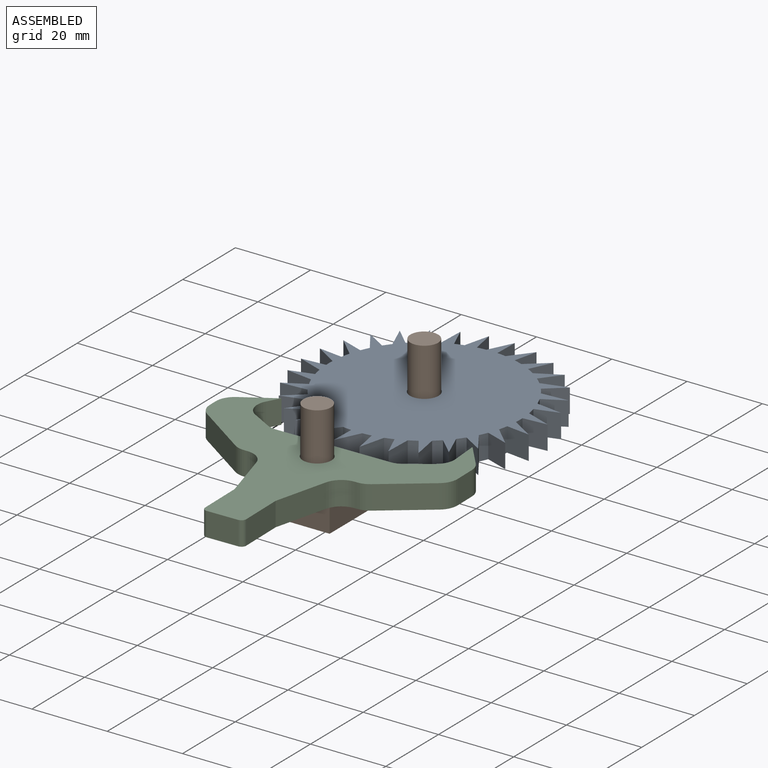
[diagram: assembled view]
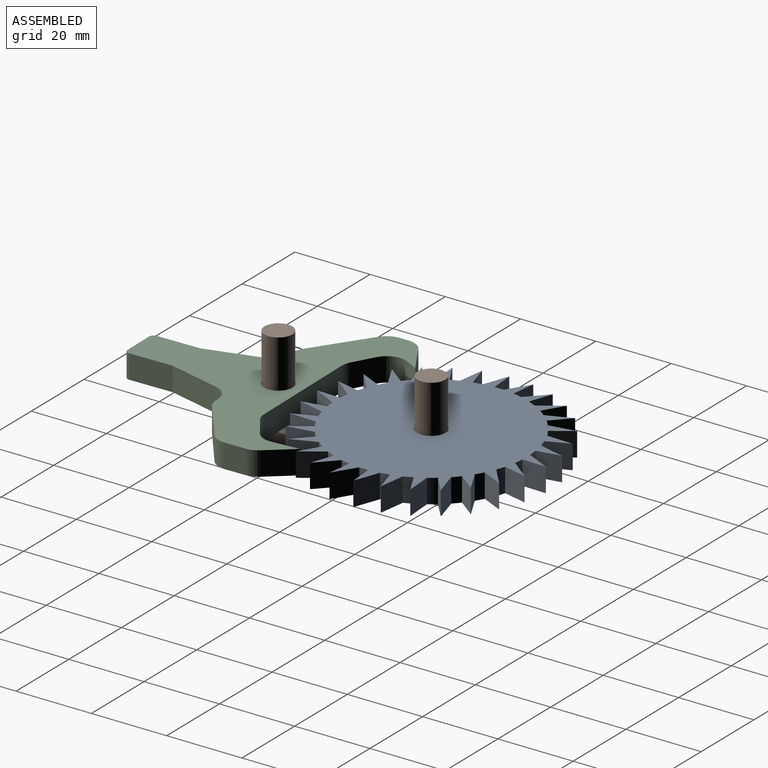
[diagram: assembled view, second angle]
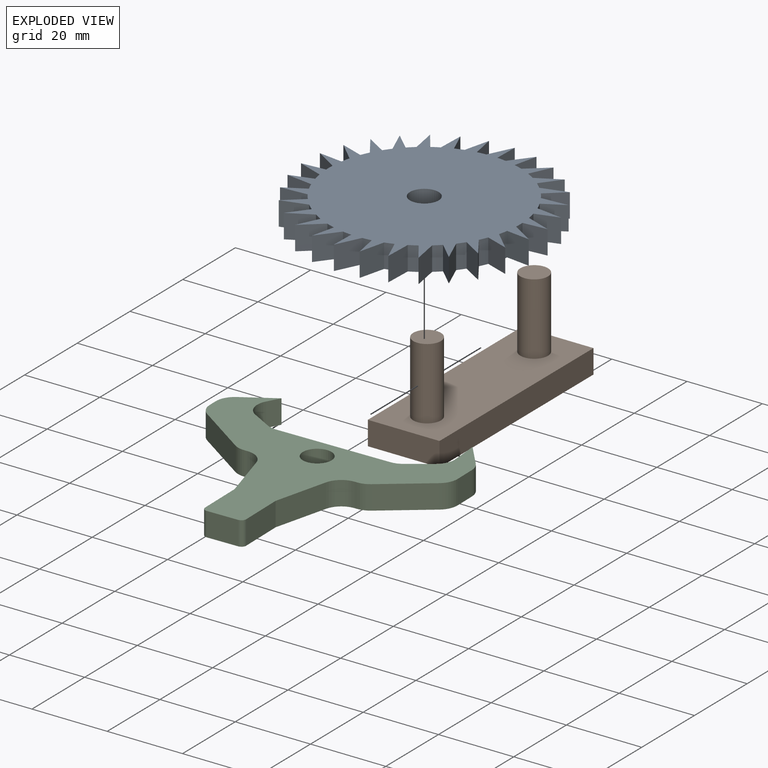
[diagram: exploded view]
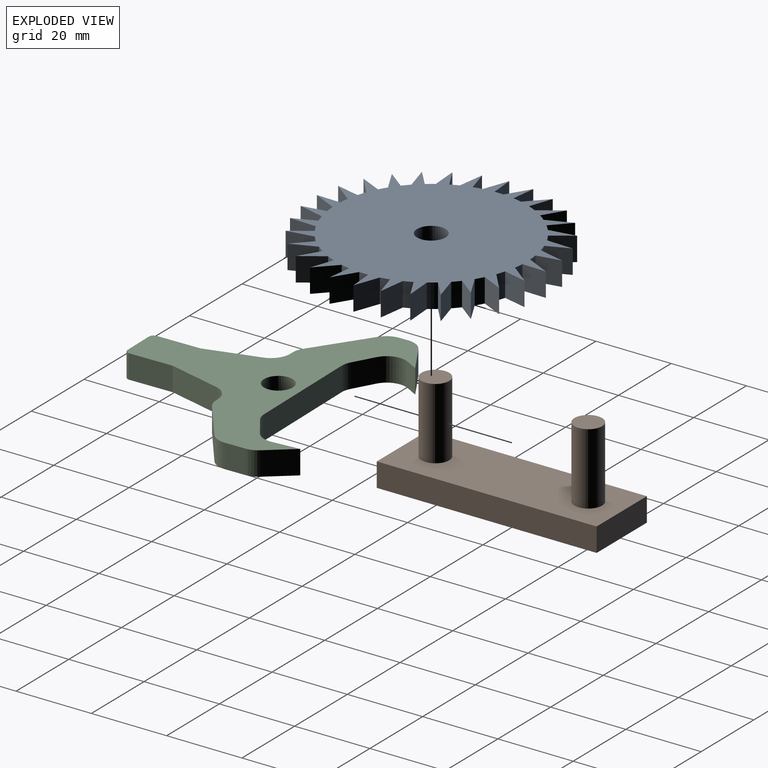
[diagram: exploded view, second angle]
ASSEMBLY  parts=3 mates=4
PART A: 93 faces, bbox 63.3x63.5x6.4 mm
  f0: plane 6.41x6.35mm, normal (-0.91,0.41,0), area 44.7mm2, adj f1,f2,f3,f4
  f1: plane 6.35x6.35mm, normal (1,0,0), area 40.3mm2, adj f0,f2,f3,f91
  f2: plane 63.47x63.33mm, normal (0,0,1), area 2257.2mm2, adj f0,f1,f4,f5,f6,f7,f8,f9
  f3: plane 63.47x63.33mm, normal (0,0,-1), area 2257.2mm2, adj f0,f1,f4,f5,f6,f7,f8,f9
  f4: cylinder r=25.4mm len=6.35mm, axis (0,0,-1), area 15.2mm2, adj f0,f2,f3,f6
  f5: plane 6.87x6.35mm, normal (-0.98,0.22,0), area 44.7mm2, adj f2,f3,f6,f7
  f6: plane 6.35x6.22mm, normal (0.98,0.21,0), area 40.3mm2, adj f2,f3,f4,f5
  f7: cylinder r=25.4mm len=6.35mm, axis (0,0,-1), area 15.2mm2, adj f2,f3,f5,f9
  f8: plane 7.04x6.35mm, normal (-1,0.01,0), area 44.7mm2, adj f2,f3,f9,f10
  f9: plane 6.35x5.8mm, normal (0.91,0.41,0), area 40.3mm2, adj f2,f3,f7,f8
  f10: cylinder r=25.4mm len=6.35mm, axis (0,0,-1), area 15.2mm2, adj f2,f3,f8,f12
  f11: plane 6.9x6.35mm, normal (-0.98,-0.2,0), area 44.7mm2, adj f2,f3,f12,f13
  f12: plane 6.35x5.14mm, normal (0.81,0.59,0), area 40.3mm2, adj f2,f3,f10,f11
  f13: cylinder r=25.4mm len=6.35mm, axis (0,0,-1), area 15.2mm2, adj f2,f3,f11,f15
  f14: plane 6.46x6.35mm, normal (-0.92,-0.4,0), area 44.7mm2, adj f2,f3,f15,f16
  f15: plane 6.35x4.72mm, normal (0.67,0.74,0), area 40.3mm2, adj f2,f3,f13,f14
  f16: cylinder r=25.4mm len=6.35mm, axis (0,0,-1), area 15.2mm2, adj f2,f3,f14,f18
  f17: plane 6.35x5.73mm, normal (-0.81,-0.58,0), area 44.7mm2, adj f2,f3,f18,f19
  f18: plane 6.35x5.5mm, normal (0.5,0.87,0), area 40.3mm2, adj f2,f3,f16,f17
  f19: cylinder r=25.4mm len=6.35mm, axis (0,0,-1), area 15.2mm2, adj f2,f3,f17,f21
  f20: plane 6.35x5.19mm, normal (-0.68,-0.74,0), area 44.7mm2, adj f2,f3,f21,f22
  f21: plane 6.35x6.04mm, normal (0.31,0.95,0), area 40.3mm2, adj f2,f3,f19,f20
  f22: cylinder r=25.4mm len=6.35mm, axis (0,0,-1), area 15.2mm2, adj f2,f3,f20,f24
  f23: plane 6.35x6.07mm, normal (-0.51,-0.86,0), area 44.7mm2, adj f2,f3,f24,f25
  f24: plane 6.35x6.32mm, normal (0.1,0.99,0), area 40.3mm2, adj f2,f3,f22,f23
  f25: cylinder r=25.4mm len=6.35mm, axis (0,0,-1), area 15.2mm2, adj f2,f3,f23,f27
  f26: plane 6.68x6.35mm, normal (-0.32,-0.95,0), area 44.7mm2, adj f2,f3,f27,f28
  f27: plane 6.35x6.32mm, normal (-0.1,0.99,0), area 40.3mm2, adj f2,f3,f25,f26
  f28: cylinder r=25.4mm len=6.35mm, axis (0,0,-1), area 15.2mm2, adj f2,f3,f26,f30
  f29: plane 6.99x6.35mm, normal (-0.11,-0.99,0), area 44.7mm2, adj f2,f3,f30,f31
  f30: plane 6.35x6.04mm, normal (-0.31,0.95,0), area 40.3mm2, adj f2,f3,f28,f29
  f31: cylinder r=25.4mm len=6.35mm, axis (0,0,-1), area 15.2mm2, adj f2,f3,f29,f33
  f32: plane 7.01x6.35mm, normal (0.1,-1,0), area 44.7mm2, adj f2,f3,f33,f34
  f33: plane 6.35x5.5mm, normal (-0.5,0.87,0), area 40.3mm2, adj f2,f3,f31,f32
  f34: cylinder r=25.4mm len=6.35mm, axis (0,0,-1), area 15.2mm2, adj f2,f3,f32,f36
  f35: plane 6.71x6.35mm, normal (0.3,-0.95,0), area 44.7mm2, adj f2,f3,f36,f37
  f36: plane 6.35x4.72mm, normal (-0.67,0.74,0), area 40.3mm2, adj f2,f3,f34,f35
  f37: cylinder r=25.4mm len=6.35mm, axis (0,0,-1), area 15.2mm2, adj f2,f3,f35,f39
  f38: plane 6.35x6.13mm, normal (0.49,-0.87,0), area 44.7mm2, adj f2,f3,f39,f40
  f39: plane 6.35x5.14mm, normal (-0.81,0.59,0), area 40.3mm2, adj f2,f3,f37,f38
  f40: cylinder r=25.4mm len=6.35mm, axis (0,0,-1), area 15.2mm2, adj f2,f3,f38,f42
  f41: plane 6.35x5.27mm, normal (0.66,-0.75,0), area 44.7mm2, adj f2,f3,f42,f43
  f42: plane 6.35x5.8mm, normal (-0.91,0.41,0), area 40.3mm2, adj f2,f3,f40,f41
  f43: cylinder r=25.4mm len=6.35mm, axis (0,0,-1), area 15.2mm2, adj f2,f3,f41,f45
  f44: plane 6.35x5.66mm, normal (0.8,-0.6,0), area 44.7mm2, adj f2,f3,f45,f46
  f45: plane 6.35x6.22mm, normal (-0.98,0.21,0), area 40.3mm2, adj f2,f3,f43,f44
  f46: cylinder r=25.4mm len=6.35mm, axis (0,0,-1), area 15.2mm2, adj f2,f3,f44,f48
  f47: plane 6.41x6.35mm, normal (0.91,-0.41,0), area 44.7mm2, adj f2,f3,f48,f49
  f48: plane 6.35x6.35mm, normal (-1,0,0), area 40.3mm2, adj f2,f3,f46,f47
  f49: cylinder r=25.4mm len=6.35mm, axis (0,0,-1), area 15.2mm2, adj f2,f3,f47,f51
  f50: plane 6.87x6.35mm, normal (0.98,-0.22,0), area 44.7mm2, adj f2,f3,f51,f52
  f51: plane 6.35x6.22mm, normal (-0.98,-0.21,0), area 40.3mm2, adj f2,f3,f49,f50
  f52: cylinder r=25.4mm len=6.35mm, axis (0,0,-1), area 15.2mm2, adj f2,f3,f50,f54
  f53: plane 7.04x6.35mm, normal (1,-0.01,0), area 44.7mm2, adj f2,f3,f54,f55
  f54: plane 6.35x5.8mm, normal (-0.91,-0.41,0), area 40.3mm2, adj f2,f3,f52,f53
  f55: cylinder r=25.4mm len=6.35mm, axis (0,0,-1), area 15.2mm2, adj f2,f3,f53,f57
  f56: plane 6.9x6.35mm, normal (0.98,0.2,0), area 44.7mm2, adj f2,f3,f57,f58
  f57: plane 6.35x5.14mm, normal (-0.81,-0.59,0), area 40.3mm2, adj f2,f3,f55,f56
  f58: cylinder r=25.4mm len=6.35mm, axis (0,0,-1), area 15.2mm2, adj f2,f3,f56,f60
  f59: plane 6.46x6.35mm, normal (0.92,0.4,0), area 44.7mm2, adj f2,f3,f60,f61
  f60: plane 6.35x4.72mm, normal (-0.67,-0.74,0), area 40.3mm2, adj f2,f3,f58,f59
  f61: cylinder r=25.4mm len=6.35mm, axis (0,0,-1), area 15.2mm2, adj f2,f3,f59,f63
  f62: plane 6.35x5.73mm, normal (0.81,0.58,0), area 44.7mm2, adj f2,f3,f63,f64
  f63: plane 6.35x5.5mm, normal (-0.5,-0.87,0), area 40.3mm2, adj f2,f3,f61,f62
  f64: cylinder r=25.4mm len=6.35mm, axis (0,0,-1), area 15.2mm2, adj f2,f3,f62,f66
  f65: plane 6.35x5.19mm, normal (0.68,0.74,0), area 44.7mm2, adj f2,f3,f66,f67
  f66: plane 6.35x6.04mm, normal (-0.31,-0.95,0), area 40.3mm2, adj f2,f3,f64,f65
  f67: cylinder r=25.4mm len=6.35mm, axis (0,0,-1), area 15.2mm2, adj f2,f3,f65,f69
  f68: plane 6.35x6.07mm, normal (0.51,0.86,0), area 44.7mm2, adj f2,f3,f69,f70
  f69: plane 6.35x6.32mm, normal (-0.1,-0.99,0), area 40.3mm2, adj f2,f3,f67,f68
  f70: cylinder r=25.4mm len=6.35mm, axis (0,0,-1), area 15.2mm2, adj f2,f3,f68,f72
  f71: plane 6.68x6.35mm, normal (0.32,0.95,0), area 44.7mm2, adj f2,f3,f72,f73
  f72: plane 6.35x6.32mm, normal (0.1,-0.99,0), area 40.3mm2, adj f2,f3,f70,f71
  f73: cylinder r=25.4mm len=6.35mm, axis (0,0,-1), area 15.2mm2, adj f2,f3,f71,f75
  f74: plane 6.99x6.35mm, normal (0.11,0.99,0), area 44.7mm2, adj f2,f3,f75,f76
  f75: plane 6.35x6.04mm, normal (0.31,-0.95,0), area 40.3mm2, adj f2,f3,f73,f74
  f76: cylinder r=25.4mm len=6.35mm, axis (0,0,-1), area 15.2mm2, adj f2,f3,f74,f78
  f77: plane 7.01x6.35mm, normal (-0.1,1,0), area 44.7mm2, adj f2,f3,f78,f79
  f78: plane 6.35x5.5mm, normal (0.5,-0.87,0), area 40.3mm2, adj f2,f3,f76,f77
  f79: cylinder r=25.4mm len=6.35mm, axis (0,0,-1), area 15.2mm2, adj f2,f3,f77,f81
  f80: plane 6.71x6.35mm, normal (-0.3,0.95,0), area 44.7mm2, adj f2,f3,f81,f82
  f81: plane 6.35x4.72mm, normal (0.67,-0.74,0), area 40.3mm2, adj f2,f3,f79,f80
  f82: cylinder r=25.4mm len=6.35mm, axis (0,0,-1), area 15.2mm2, adj f2,f3,f80,f84
  f83: plane 6.35x6.13mm, normal (-0.49,0.87,0), area 44.7mm2, adj f2,f3,f84,f85
  f84: plane 6.35x5.14mm, normal (0.81,-0.59,0), area 40.3mm2, adj f2,f3,f82,f83
  f85: cylinder r=25.4mm len=6.35mm, axis (0,0,-1), area 15.2mm2, adj f2,f3,f83,f87
  f86: plane 6.35x5.27mm, normal (-0.66,0.75,0), area 44.7mm2, adj f2,f3,f87,f88
  f87: plane 6.35x5.8mm, normal (0.91,-0.41,0), area 40.3mm2, adj f2,f3,f85,f86
  f88: cylinder r=25.4mm len=6.35mm, axis (0,0,-1), area 15.2mm2, adj f2,f3,f86,f90
  f89: plane 6.35x5.66mm, normal (-0.8,0.6,0), area 44.7mm2, adj f2,f3,f90,f91
  f90: plane 6.35x6.22mm, normal (0.98,-0.21,0), area 40.3mm2, adj f2,f3,f88,f89
  f91: cylinder r=25.4mm len=6.35mm, axis (0,0,-1), area 15.2mm2, adj f1,f2,f3,f89
  f92: cylinder r=3.81mm len=7.62mm, axis (0,0,1), area 152mm2, adj f2,f3
PART B: 10 faces, bbox 19.1x58.4x25.4 mm
  f0: plane 19.05x6.35mm, normal (0,-1,0), area 121mm2, adj f1,f3,f4,f5
  f1: plane 58.42x6.35mm, normal (1,0,0), area 371mm2, adj f0,f2,f4,f5
  f2: plane 19.05x6.35mm, normal (0,1,0), area 121mm2, adj f1,f3,f4,f5
  f3: plane 58.42x6.35mm, normal (-1,0,0), area 371mm2, adj f0,f2,f4,f5
  f4: plane 58.42x19.05mm, normal (0,0,1), area 1027.7mm2, adj f0,f1,f2,f3,f6,f8
  f5: plane 58.42x19.05mm, normal (0,0,-1), area 1112.9mm2, adj f0,f1,f2,f3
  f6: cylinder r=3.68mm len=19.05mm, axis (0,0,-1), area 440.8mm2, adj f4,f7
  f7: plane 7.37x7.37mm, normal (0,0,1), area 42.6mm2, adj f6
  f8: cylinder r=3.68mm len=19.05mm, axis (0,0,-1), area 440.8mm2, adj f4,f9
  f9: plane 7.37x7.37mm, normal (0,0,1), area 42.6mm2, adj f8
PART C: 35 faces, bbox 66x59.7x6.4 mm
  f0: plane 14.17x10.01mm, normal (-0.58,-0.82,0), area 110.1mm2, adj f19,f20,f21,f25
  f1: plane 6.35x0.84mm, normal (0,-1,0), area 5.3mm2, adj f19,f20,f21,f26
  f2: plane 14.02x6.35mm, normal (-0.97,-0.26,0), area 92.1mm2, adj f3,f19,f20,f26
  f3: plane 11.43x6.35mm, normal (-1,0,0), area 72.6mm2, adj f2,f19,f20,f33
  f4: plane 8.25x6.35mm, normal (0,-1,0), area 52.4mm2, adj f19,f20,f33,f34
  f5: plane 11.43x6.35mm, normal (1,0,0), area 72.6mm2, adj f6,f19,f20,f34
  f6: plane 14.02x6.35mm, normal (0.97,-0.26,0), area 92.1mm2, adj f5,f19,f20,f27
  f7: plane 6.35x0.8mm, normal (0,-1,0), area 5.1mm2, adj f19,f20,f27,f28
  f8: plane 11.97x8.73mm, normal (0.59,-0.81,0), area 94.1mm2, adj f19,f20,f28,f30
  f9: plane 6.35x5.45mm, normal (1,0,0), area 34.6mm2, adj f19,f20,f30,f31
  f10: plane 6.77x6.35mm, normal (0.78,0.63,0), area 55.2mm2, adj f11,f19,f20,f31
  f11: plane 7.23x6.35mm, normal (-1,-0.07,0), area 46mm2, adj f10,f19,f20,f32
  f12: plane 6.35x5.78mm, normal (-0.56,0.83,0), area 44.2mm2, adj f19,f20,f29,f32
  f13: plane 30.12x6.35mm, normal (0,1,0), area 191.2mm2, adj f19,f20,f22,f29
  f14: plane 6.35x5.42mm, normal (0.5,0.87,0), area 39.7mm2, adj f19,f20,f22,f23
  f15: plane 6.35x3.22mm, normal (0.87,-0.5,0), area 23.6mm2, adj f16,f19,f20,f23
  f16: plane 8.5x6.35mm, normal (-0.5,0.87,0), area 62.3mm2, adj f15,f19,f20,f24
  f17: plane 6.35x2.28mm, normal (-1,0,0), area 14.5mm2, adj f19,f20,f24,f25
  f18: cylinder r=3.81mm len=7.62mm, axis (0,0,-1), area 152mm2, adj f19,f20
  f19: plane 66.05x59.69mm, normal (0,0,1), area 1232mm2, adj f0,f1,f2,f3,f4,f5,f6,f7
  f20: plane 66.05x59.69mm, normal (0,0,-1), area 1232mm2, adj f0,f1,f2,f3,f4,f5,f6,f7
  f21: cylinder r=5.08mm len=6.35mm, axis (0,0,1), area 19.8mm2, adj f0,f1,f19,f20
  f22: cylinder r=5.08mm len=6.35mm, axis (0,0,1), area 16.9mm2, adj f13,f14,f19,f20
  f23: cylinder r=5.08mm len=6.94mm, axis (0,0,1), area 50.7mm2, adj f14,f15,f19,f20
  f24: cylinder r=5.08mm len=6.35mm, axis (0,0,-1), area 33.8mm2, adj f16,f17,f19,f20
  f25: cylinder r=5.08mm len=6.35mm, axis (0,0,-1), area 30.8mm2, adj f0,f17,f19,f20
  f26: cylinder r=5.08mm len=6.35mm, axis (0,0,-1), area 42.2mm2, adj f1,f2,f19,f20
  f27: cylinder r=5.08mm len=6.35mm, axis (0,0,-1), area 42.2mm2, adj f6,f7,f19,f20
  f28: cylinder r=5.08mm len=6.35mm, axis (0,0,-1), area 20.3mm2, adj f7,f8,f19,f20
  f29: cylinder r=5.08mm len=6.35mm, axis (0,0,-1), area 19mm2, adj f12,f13,f19,f20
  f30: cylinder r=5.08mm len=6.35mm, axis (0,0,-1), area 30.3mm2, adj f8,f9,f19,f20
  f31: cylinder r=5.08mm len=6.35mm, axis (0,0,-1), area 21.8mm2, adj f9,f10,f19,f20
  f32: cylinder r=5.08mm len=6.35mm, axis (0,0,1), area 33.8mm2, adj f11,f12,f19,f20
  f33: cylinder r=1.27mm len=6.35mm, axis (0,0,-1), area 12.7mm2, adj f3,f4,f19,f20
  f34: cylinder r=1.27mm len=6.35mm, axis (0,0,1), area 12.7mm2, adj f4,f5,f19,f20
PLACE A rot(axis=(0,0,-1),37.5deg) t=(0,20.32,6.35)mm
PLACE B at identity
PLACE C rot(axis=(0,0,1),1deg) t=(0,-20.32,6.35)mm
MATE planar C.f20 <-> B.f4  axis (0,0,-1) through (7.56,-37.32,6.35)mm
MATE planar A.f3 <-> B.f4  axis (0,0,-1) through (-22.6,31.92,6.35)mm
MATE cylindrical C.f18 <-> B.f8  axis (0,0,-1) through (0,-20.32,9.53)mm
MATE cylindrical A.f92 <-> B.f6  axis (0,0,1) through (0,20.32,9.52)mm
